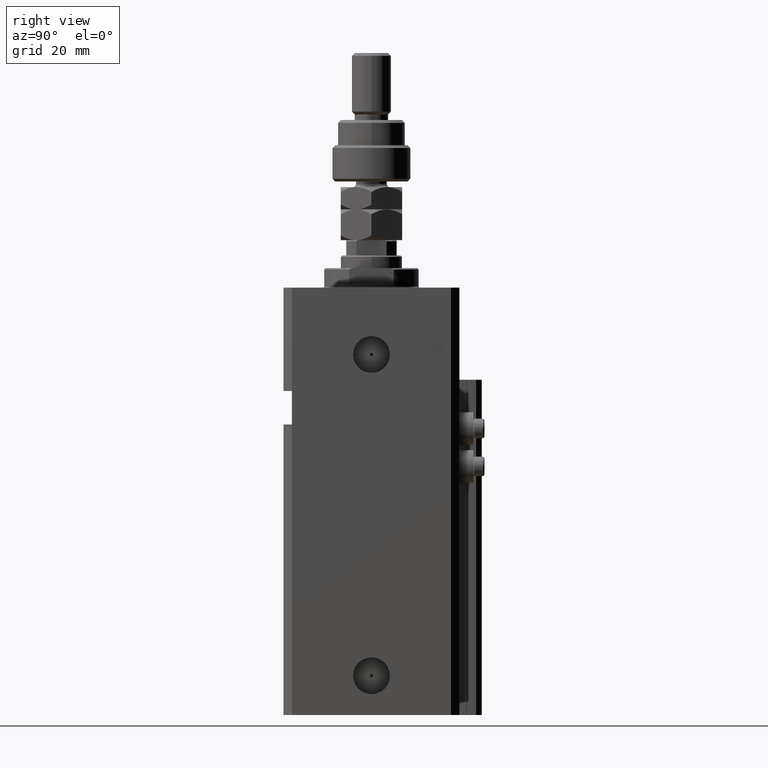
[diagram: clean part render]
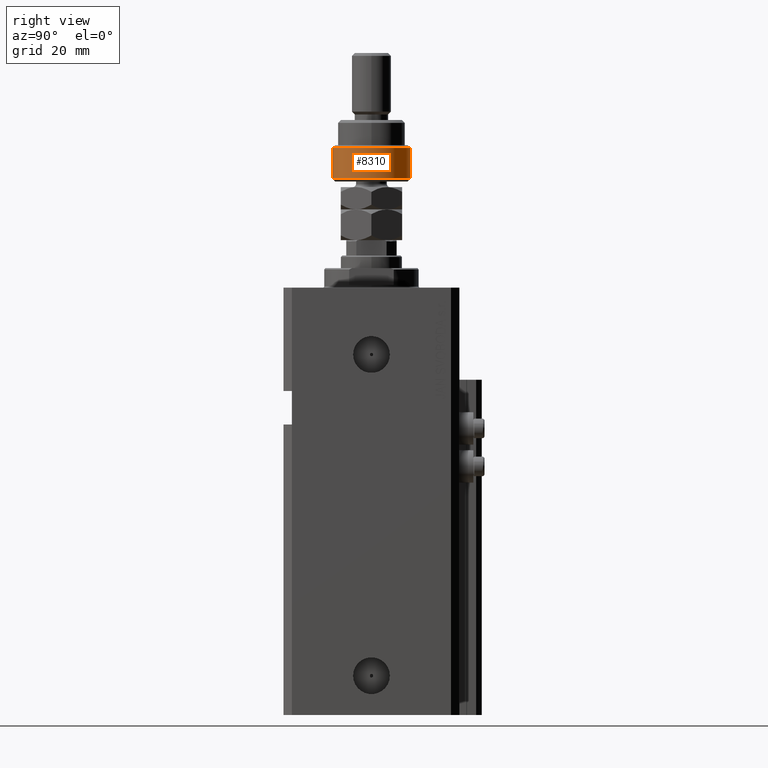
[diagram: same view with one face highlighted and labeled with its STEP entity id]
A machine part, right view. The second image highlights one B-rep face of the part: STEP entity #8310.
In plain terms, the highlighted cylindrical surface (partial cylindrical patch) has radius 14 mm, axis along (-0, -0, -1).
Its self-contained STEP definition (entity closure, byte-faithful):
#665 = VECTOR ( 'NONE', #29910, 1000.000000000000000 ) ;
#1261 = DIRECTION ( 'NONE',  ( -0.000000000000000000, -0.000000000000000000, -1.000000000000000000 ) ) ;
#1473 = DIRECTION ( 'NONE',  ( -0.000000000000000000, -0.000000000000000000, 1.000000000000000000 ) ) ;
#1537 = AXIS2_PLACEMENT_3D ( 'NONE', #36684, #4754, #20468 ) ;
#2901 = DIRECTION ( 'NONE',  ( -1.000000000000000000, 0.000000000000000000, 0.000000000000000000 ) ) ;
#3947 = ORIENTED_EDGE ( 'NONE', *, *, #41323, .T. ) ;
#4754 = DIRECTION ( 'NONE',  ( -0.000000000000000000, -0.000000000000000000, 1.000000000000000000 ) ) ;
#4846 = ORIENTED_EDGE ( 'NONE', *, *, #23127, .T. ) ;
#5788 = VERTEX_POINT ( 'NONE', #7258 ) ;
#5880 = LINE ( 'NONE', #13869, #29602 ) ;
#7213 = CARTESIAN_POINT ( 'NONE',  ( -12.64911064067351809, 6.000000000000000000, 1.000000000000035527 ) ) ;
#7258 = CARTESIAN_POINT ( 'NONE',  ( 14.00000000000000000, 0.000000000000000000, 1.000000000000032196 ) ) ;
#8310 = ADVANCED_FACE ( 'NONE', ( #30231 ), #42051, .T. ) ;
#8575 = AXIS2_PLACEMENT_3D ( 'NONE', #21062, #1473, #48623 ) ;
#8713 = VERTEX_POINT ( 'NONE', #7213 ) ;
#9175 = VERTEX_POINT ( 'NONE', #13320 ) ;
#9455 = CIRCLE ( 'NONE', #17662, 14.00000000000000000 ) ;
#10646 = DIRECTION ( 'NONE',  ( -0.000000000000000000, -0.000000000000000000, -1.000000000000000000 ) ) ;
#11219 = CARTESIAN_POINT ( 'NONE',  ( -12.64911064067351809, -5.999999999999999112, 12.00000000000003553 ) ) ;
#13320 = CARTESIAN_POINT ( 'NONE',  ( -12.64911064067351809, -5.999999999999999112, 1.000000000000035527 ) ) ;
#13869 = CARTESIAN_POINT ( 'NONE',  ( -12.64911064067351809, 6.000000000000000000, 14.50000000000000000 ) ) ;
#13894 = CIRCLE ( 'NONE', #1537, 14.00000000000000000 ) ;
#15525 = CARTESIAN_POINT ( 'NONE',  ( 0.000000000000000000, 0.000000000000000000, 13.00000000000000000 ) ) ;
#17662 = AXIS2_PLACEMENT_3D ( 'NONE', #30897, #50220, #22896 ) ;
#19792 = EDGE_CURVE ( 'NONE', #9175, #5788, #13894, .T. ) ;
#20468 = DIRECTION ( 'NONE',  ( 1.000000000000000000, 0.000000000000000000, 0.000000000000000000 ) ) ;
#21062 = CARTESIAN_POINT ( 'NONE',  ( 0.000000000000000000, 0.000000000000000000, 1.000000000000032196 ) ) ;
#21782 = VERTEX_POINT ( 'NONE', #30271 ) ;
#22896 = DIRECTION ( 'NONE',  ( 1.000000000000000000, 0.000000000000000000, 0.000000000000000000 ) ) ;
#23127 = EDGE_CURVE ( 'NONE', #30957, #9175, #30160, .T. ) ;
#29602 = VECTOR ( 'NONE', #1261, 1000.000000000000000 ) ;
#29910 = DIRECTION ( 'NONE',  ( -0.000000000000000000, -0.000000000000000000, -1.000000000000000000 ) ) ;
#30160 = LINE ( 'NONE', #45866, #665 ) ;
#30231 = FACE_OUTER_BOUND ( 'NONE', #46665, .T. ) ;
#30271 = CARTESIAN_POINT ( 'NONE',  ( -12.64911064067351809, 6.000000000000000000, 12.00000000000003553 ) ) ;
#30566 = EDGE_CURVE ( 'NONE', #21782, #8713, #5880, .T. ) ;
#30771 = CIRCLE ( 'NONE', #8575, 14.00000000000000000 ) ;
#30897 = CARTESIAN_POINT ( 'NONE',  ( 0.000000000000000000, 0.000000000000000000, 12.00000000000003553 ) ) ;
#30957 = VERTEX_POINT ( 'NONE', #11219 ) ;
#33246 = AXIS2_PLACEMENT_3D ( 'NONE', #15525, #10646, #2901 ) ;
#33379 = ORIENTED_EDGE ( 'NONE', *, *, #19792, .T. ) ;
#36684 = CARTESIAN_POINT ( 'NONE',  ( 0.000000000000000000, 0.000000000000000000, 1.000000000000032196 ) ) ;
#41323 = EDGE_CURVE ( 'NONE', #21782, #30957, #9455, .T. ) ;
#41829 = ORIENTED_EDGE ( 'NONE', *, *, #43769, .T. ) ;
#42051 = CYLINDRICAL_SURFACE ( 'NONE', #33246, 14.00000000000000000 ) ;
#43769 = EDGE_CURVE ( 'NONE', #5788, #8713, #30771, .T. ) ;
#45866 = CARTESIAN_POINT ( 'NONE',  ( -12.64911064067351809, -5.999999999999999112, 14.50000000000000000 ) ) ;
#46665 = EDGE_LOOP ( 'NONE', ( #49023, #3947, #4846, #33379, #41829 ) ) ;
#48623 = DIRECTION ( 'NONE',  ( 1.000000000000000000, 0.000000000000000000, 0.000000000000000000 ) ) ;
#49023 = ORIENTED_EDGE ( 'NONE', *, *, #30566, .F. ) ;
#50220 = DIRECTION ( 'NONE',  ( 0.000000000000000000, 0.000000000000000000, -1.000000000000000000 ) ) ;